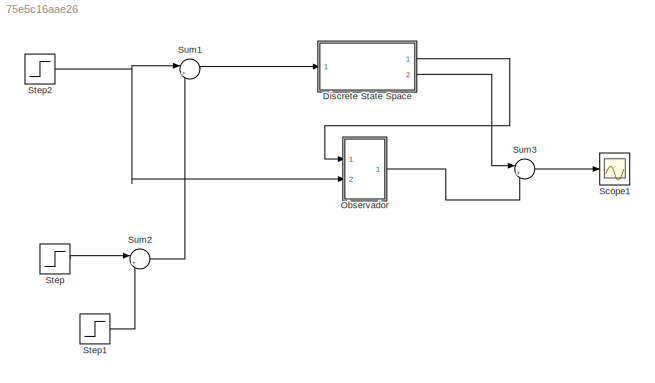
MODEL slx_75e5c16aae26
KIND model
CONFIG AbsTol = auto
CONFIG FixedStep = 0.02
CONFIG MaxStep = auto
CONFIG MinStep = auto
CONFIG RelTol = 1e-3
CONFIG SampleTimeConstraint = Unconstrained
CONFIG Solver = FixedStepDiscrete
CONFIG SolverMode = Auto
CONFIG SolverName = FixedStepDiscrete
CONFIG StartTime = 0.0
CONFIG StopTime = 120
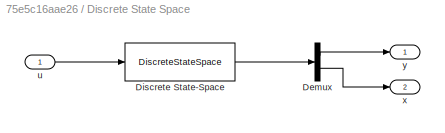
BLOCK [SubSystem] Discrete State Space 
  Ports = [1, 2]
  RequestExecContextInheritance = off
BLOCK [Demux] Discrete State Space /Demux
  DisplayOption = bar
  Outputs = [1 length(A)]
  Ports = [1, 2]
BLOCK [DiscreteStateSpace] Discrete State Space /Discrete State-Space
  A = A
  B = B
  C = [C;eye(4)]
  D = [0;0;0;0;0]
  SampleTime = 0.001
BLOCK [Inport] Discrete State Space /u
  IconDisplay = Port number
BLOCK [Outport] Discrete State Space /x
  IconDisplay = Port number
  Port = 2
BLOCK [Outport] Discrete State Space /y
  IconDisplay = Port number
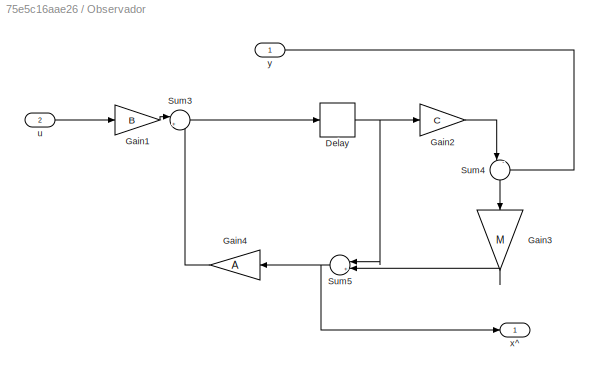
BLOCK [SubSystem] Observador
  Ports = [2, 1]
  RequestExecContextInheritance = off
BLOCK [Delay] Observador/Delay
  DelayLength = 1
  InitialCondition = 0
  InputPortMap = u0
  Ports = [1, 1]
BLOCK [Gain] Observador/Gain1
  Gain = B
  Multiplication = Matrix(K*u)
  OutDataTypeStr = Inherit: Inherit via internal rule
  ParamDataTypeStr = Inherit: Inherit via internal rule
  SaturateOnIntegerOverflow = off
BLOCK [Gain] Observador/Gain2
  Gain = C
  Multiplication = Matrix(K*u)
  OutDataTypeStr = Inherit: Inherit via internal rule
  ParamDataTypeStr = Inherit: Inherit via internal rule
  SaturateOnIntegerOverflow = off
BLOCK [Gain] Observador/Gain3
  Gain = M
  Multiplication = Matrix(K*u)
  OutDataTypeStr = Inherit: Inherit via internal rule
  ParamDataTypeStr = Inherit: Inherit via internal rule
  SaturateOnIntegerOverflow = off
BLOCK [Gain] Observador/Gain4
  Gain = A
  Multiplication = Matrix(K*u)
  OutDataTypeStr = Inherit: Inherit via internal rule
  ParamDataTypeStr = Inherit: Inherit via internal rule
  SaturateOnIntegerOverflow = off
BLOCK [Sum] Observador/Sum3
  IconShape = round
  InputSameDT = off
  Inputs = |++
  OutDataTypeStr = Inherit: Inherit via internal rule
  Ports = [2, 1]
  SaturateOnIntegerOverflow = off
BLOCK [Sum] Observador/Sum4
  IconShape = round
  InputSameDT = off
  Inputs = |-+
  OutDataTypeStr = Inherit: Inherit via internal rule
  Ports = [2, 1]
  SaturateOnIntegerOverflow = off
BLOCK [Sum] Observador/Sum5
  IconShape = round
  InputSameDT = off
  Inputs = |++
  OutDataTypeStr = Inherit: Inherit via internal rule
  Ports = [2, 1]
  SaturateOnIntegerOverflow = off
BLOCK [Inport] Observador/u
  IconDisplay = Port number
  Port = 2
BLOCK [Outport] Observador/x^
  IconDisplay = Port number
BLOCK [Inport] Observador/y
  IconDisplay = Port number
BLOCK [Scope] Scope1
  Floating = off
  NumInputPorts = 1
  Ports = [1]
  SaveName = ScopeData1
BLOCK [Step] Step
  SampleTime = 0
BLOCK [Step] Step1
  SampleTime = 0
  Time = 2
BLOCK [Step] Step2
  After = 0
  SampleTime = 0
BLOCK [Sum] Sum1
  IconShape = round
  InputSameDT = off
  Inputs = |++
  OutDataTypeStr = Inherit: Inherit via internal rule
  Ports = [2, 1]
  SaturateOnIntegerOverflow = off
BLOCK [Sum] Sum2
  IconShape = round
  InputSameDT = off
  Inputs = |+-
  OutDataTypeStr = Inherit: Inherit via internal rule
  Ports = [2, 1]
  SaturateOnIntegerOverflow = off
BLOCK [Sum] Sum3
  IconShape = round
  InputSameDT = off
  Inputs = |+-
  OutDataTypeStr = Inherit: Inherit via internal rule
  Ports = [2, 1]
  SaturateOnIntegerOverflow = off
LINE Discrete State Space /Demux:1 -> Discrete State Space /y:1
LINE Discrete State Space /Demux:2 -> Discrete State Space /x:1
LINE Discrete State Space /Discrete State-Space:1 -> Discrete State Space /Demux:1
LINE Discrete State Space /u:1 -> Discrete State Space /Discrete State-Space:1
LINE Discrete State Space :1 -> Observador:1
LINE Discrete State Space :2 -> Sum3:1
NET Observador/Delay:1 -> Observador/Gain2:1, Observador/Sum5:1
LINE Observador/Gain1:1 -> Observador/Sum3:1
LINE Observador/Gain2:1 -> Observador/Sum4:1
LINE Observador/Gain3:1 -> Observador/Sum5:2
LINE Observador/Gain4:1 -> Observador/Sum3:2
LINE Observador/Sum3:1 -> Observador/Delay:1
LINE Observador/Sum4:1 -> Observador/Gain3:1
NET Observador/Sum5:1 -> Observador/Gain4:1, Observador/x^:1
LINE Observador/u:1 -> Observador/Gain1:1
LINE Observador/y:1 -> Observador/Sum4:2
LINE Observador:1 -> Sum3:2
LINE Step1:1 -> Sum2:2
NET Step2:1 -> Observador:2, Sum1:1
LINE Step:1 -> Sum2:1
LINE Sum1:1 -> Discrete State Space :1
LINE Sum2:1 -> Sum1:2
LINE Sum3:1 -> Scope1:1
note: NET lines group one-source signal fan-out (src -> all destinations, sorted); 1:1 wires keep LINE
